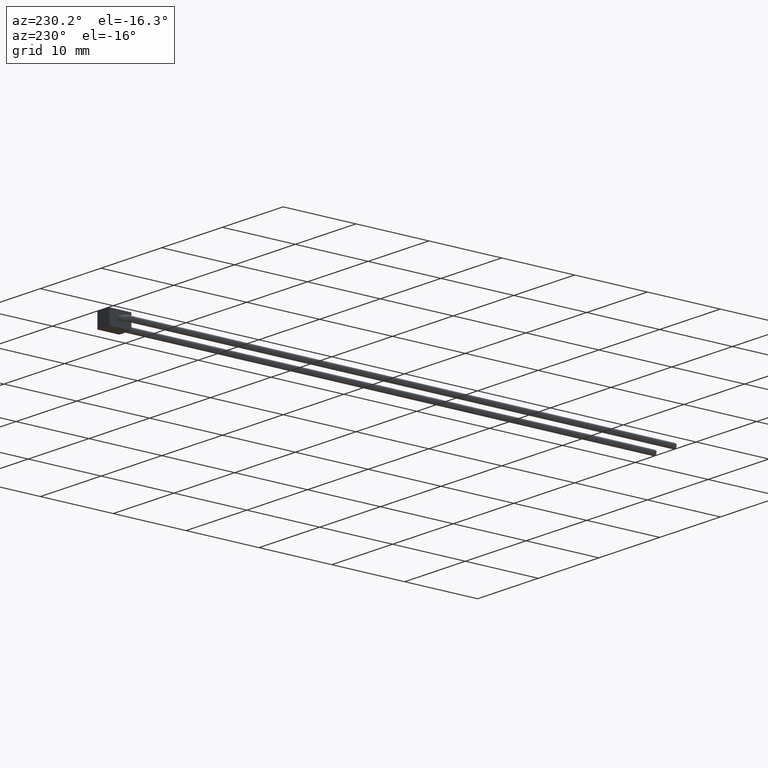
[diagram: clean part render]
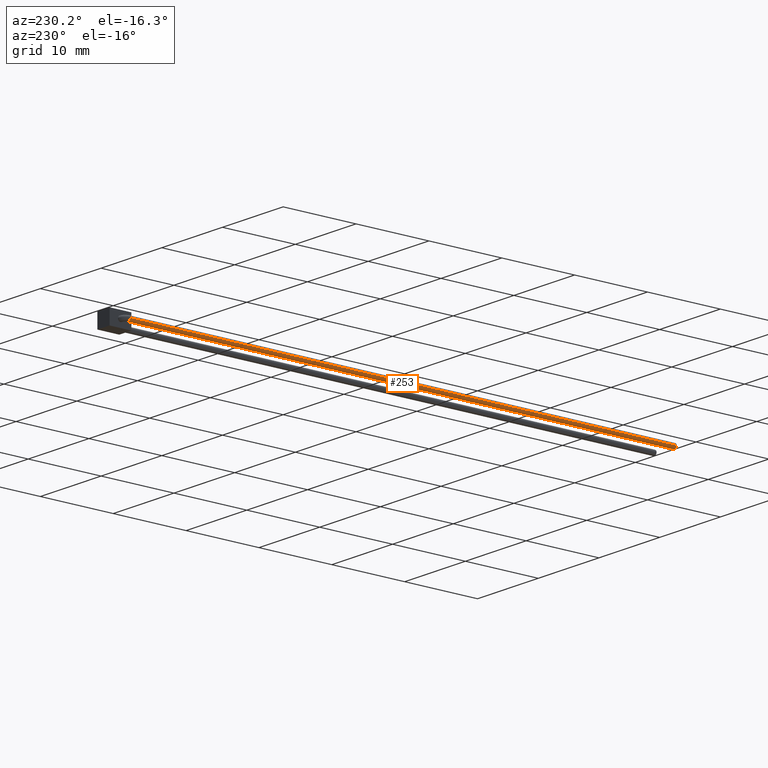
[diagram: same view with one face highlighted and labeled with its STEP entity id]
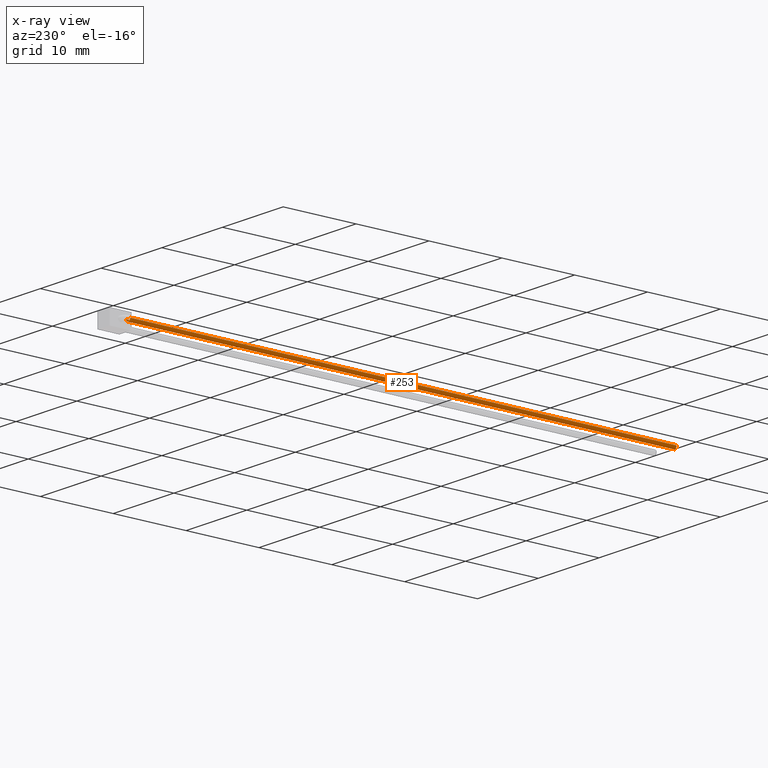
[diagram: x-ray of the same camera — body ghosted, the highlighted face saturated]
A machine part, auxiliary view. The second image highlights one B-rep face of the part: STEP entity #253.
The next image is the same camera in x-ray: the body ghosted, the highlighted face saturated — about 0% of this face is hidden behind the body in this view.
In plain terms, the highlighted cylindrical surface (edge-blend (fillet) strip) has radius 0.35 mm, axis along (0, -1, 0).
Its self-contained STEP definition (entity closure, byte-faithful):
#46 = EDGE_LOOP ( 'NONE', ( #619, #347, #98, #198 ) ) ;
#98 = ORIENTED_EDGE ( 'NONE', *, *, #135, .T. ) ;
#99 = CARTESIAN_POINT ( 'NONE',  ( -1.652776169258573180, 1.000000000000000222, -2.168404344971008868E-16 ) ) ;
#106 = EDGE_CURVE ( 'NONE', #344, #823, #533, .T. ) ;
#121 = CARTESIAN_POINT ( 'NONE',  ( -1.302776169258573091, 1.000000000000000222, -2.168404344971008868E-16 ) ) ;
#135 = EDGE_CURVE ( 'NONE', #823, #554, #992, .T. ) ;
#181 = CARTESIAN_POINT ( 'NONE',  ( -2.002776169258573269, 1.000000000000000000, -1.739777965269429292E-16 ) ) ;
#198 = ORIENTED_EDGE ( 'NONE', *, *, #987, .F. ) ;
#204 = VECTOR ( 'NONE', #237, 1000.000000000000000 ) ;
#208 = DIRECTION ( 'NONE',  ( 0.0000000000000000000, 0.0000000000000000000, 1.000000000000000000 ) ) ;
#213 = DIRECTION ( 'NONE',  ( 0.0000000000000000000, -1.000000000000000000, 0.0000000000000000000 ) ) ;
#237 = DIRECTION ( 'NONE',  ( 1.243218491116711833E-16, -1.000000000000000000, 0.0000000000000000000 ) ) ;
#253 = ADVANCED_FACE ( 'NONE', ( #592 ), #519, .T. ) ;
#344 = VERTEX_POINT ( 'NONE', #181 ) ;
#347 = ORIENTED_EDGE ( 'NONE', *, *, #106, .T. ) ;
#375 = VECTOR ( 'NONE', #671, 1000.000000000000000 ) ;
#399 = LINE ( 'NONE', #912, #204 ) ;
#417 = DIRECTION ( 'NONE',  ( 1.243218491116711833E-16, -1.000000000000000000, 0.0000000000000000000 ) ) ;
#424 = DIRECTION ( 'NONE',  ( 1.243218491116711833E-16, -1.000000000000000000, 0.0000000000000000000 ) ) ;
#509 = EDGE_CURVE ( 'NONE', #344, #701, #399, .T. ) ;
#519 = CYLINDRICAL_SURFACE ( 'NONE', #997, 0.3500000000000000333 ) ;
#533 = CIRCLE ( 'NONE', #643, 0.3499999999999999778 ) ;
#554 = VERTEX_POINT ( 'NONE', #845 ) ;
#592 = FACE_OUTER_BOUND ( 'NONE', #46, .T. ) ;
#617 = CARTESIAN_POINT ( 'NONE',  ( -1.302776169258573091, 1.000000000000000000, -2.168404344971008868E-16 ) ) ;
#619 = ORIENTED_EDGE ( 'NONE', *, *, #509, .F. ) ;
#643 = AXIS2_PLACEMENT_3D ( 'NONE', #834, #213, #208 ) ;
#648 = AXIS2_PLACEMENT_3D ( 'NONE', #886, #424, #975 ) ;
#671 = DIRECTION ( 'NONE',  ( 1.243218491116711833E-16, -1.000000000000000000, 0.0000000000000000000 ) ) ;
#701 = VERTEX_POINT ( 'NONE', #778 ) ;
#730 = CIRCLE ( 'NONE', #648, 0.3499999999999999778 ) ;
#778 = CARTESIAN_POINT ( 'NONE',  ( -2.002776169258563499, -74.00000000000000000, -1.739777965269434962E-16 ) ) ;
#823 = VERTEX_POINT ( 'NONE', #617 ) ;
#834 = CARTESIAN_POINT ( 'NONE',  ( -1.652776169258573180, 1.000000000000000000, -2.168404344971008868E-16 ) ) ;
#845 = CARTESIAN_POINT ( 'NONE',  ( -1.302776169258563765, -74.00000000000000000, -2.168404344971008868E-16 ) ) ;
#886 = CARTESIAN_POINT ( 'NONE',  ( -1.652776169258563854, -74.00000000000000000, -2.168404344971008868E-16 ) ) ;
#912 = CARTESIAN_POINT ( 'NONE',  ( -2.002776169258573269, 1.000000000000000222, -1.739777965269435209E-16 ) ) ;
#972 = DIRECTION ( 'NONE',  ( 1.000000000000000000, 0.0000000000000000000, 0.0000000000000000000 ) ) ;
#975 = DIRECTION ( 'NONE',  ( 0.0000000000000000000, 0.0000000000000000000, 1.000000000000000000 ) ) ;
#987 = EDGE_CURVE ( 'NONE', #701, #554, #730, .T. ) ;
#992 = LINE ( 'NONE', #121, #375 ) ;
#997 = AXIS2_PLACEMENT_3D ( 'NONE', #99, #417, #972 ) ;